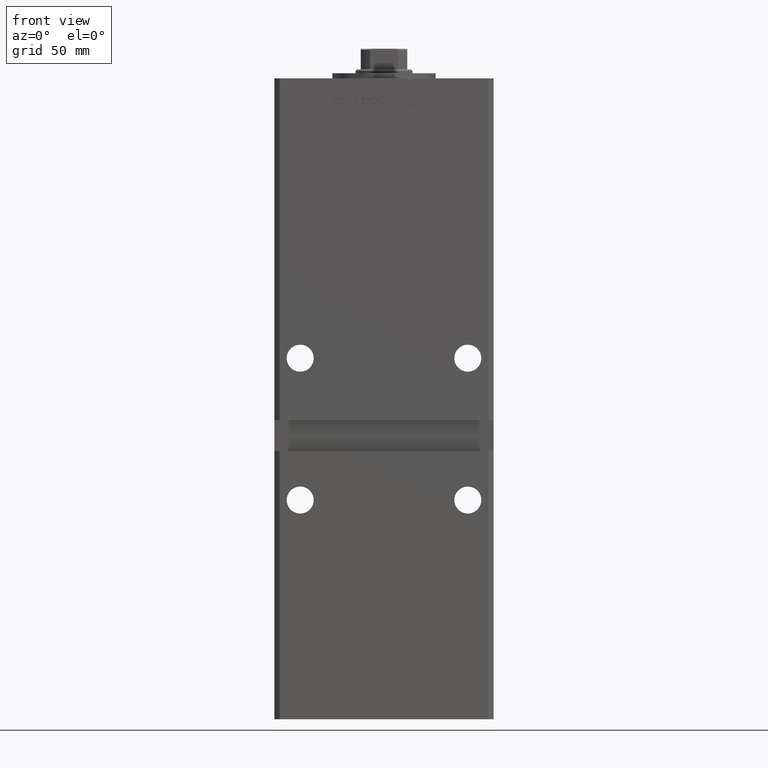
[diagram: clean part render]
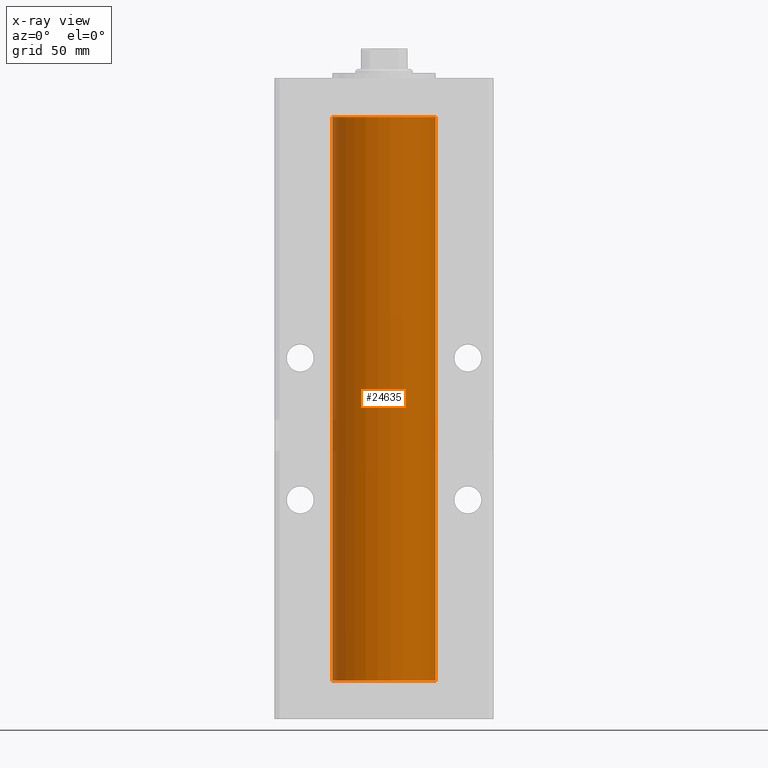
[diagram: x-ray — body ghosted, one internal face saturated and labeled with its STEP entity id]
A machine part, front view, then the same camera in x-ray: the body is ghosted and one INTERNAL B-rep face — a face not visible from any outside direction — is saturated and labeled: STEP entity #24635.
In plain terms, the highlighted cylindrical surface (partial cylindrical patch) has radius 20 mm, axis along (-0, -0, -1).
Its self-contained STEP definition (entity closure, byte-faithful):
#1312 = LINE ( 'NONE', #38566, #27430 ) ;
#1522 = DIRECTION ( 'NONE',  ( -0.000000000000000000, -0.000000000000000000, -1.000000000000000000 ) ) ;
#1948 = DIRECTION ( 'NONE',  ( 1.000000000000000000, 0.000000000000000000, 0.000000000000000000 ) ) ;
#3666 = CARTESIAN_POINT ( 'NONE',  ( 20.00000000000000000, 2.449293598294706513E-15, 0.000000000000000000 ) ) ;
#6027 = EDGE_CURVE ( 'NONE', #42696, #27926, #31945, .T. ) ;
#6831 = EDGE_CURVE ( 'NONE', #31712, #42696, #49836, .T. ) ;
#10401 = CARTESIAN_POINT ( 'NONE',  ( -20.00000000000000000, 0.000000000000000000, 218.5000000000000000 ) ) ;
#10647 = CARTESIAN_POINT ( 'NONE',  ( 20.00000000000000000, 2.449293598294706513E-15, 218.5000000000000000 ) ) ;
#17410 = DIRECTION ( 'NONE',  ( 1.000000000000000000, 0.000000000000000000, 0.000000000000000000 ) ) ;
#17875 = VECTOR ( 'NONE', #27891, 1000.000000000000000 ) ;
#17951 = DIRECTION ( 'NONE',  ( -1.000000000000000000, 0.000000000000000000, 0.000000000000000000 ) ) ;
#18984 = CIRCLE ( 'NONE', #45690, 20.00000000000000000 ) ;
#20588 = CARTESIAN_POINT ( 'NONE',  ( 20.00000000000000000, 2.449293598294706513E-15, 218.5000000000000000 ) ) ;
#21084 = CARTESIAN_POINT ( 'NONE',  ( -20.00000000000000000, 0.000000000000000000, 0.000000000000000000 ) ) ;
#22242 = AXIS2_PLACEMENT_3D ( 'NONE', #22443, #38931, #1948 ) ;
#22443 = CARTESIAN_POINT ( 'NONE',  ( 0.000000000000000000, 0.000000000000000000, 218.5000000000000000 ) ) ;
#24635 = ADVANCED_FACE ( 'NONE', ( #30917 ), #34449, .F. ) ;
#27430 = VECTOR ( 'NONE', #33988, 1000.000000000000000 ) ;
#27891 = DIRECTION ( 'NONE',  ( -0.000000000000000000, -0.000000000000000000, -1.000000000000000000 ) ) ;
#27926 = VERTEX_POINT ( 'NONE', #3666 ) ;
#29141 = ORIENTED_EDGE ( 'NONE', *, *, #39282, .F. ) ;
#30107 = DIRECTION ( 'NONE',  ( -0.000000000000000000, 0.000000000000000000, 1.000000000000000000 ) ) ;
#30606 = AXIS2_PLACEMENT_3D ( 'NONE', #38509, #1522, #17951 ) ;
#30917 = FACE_OUTER_BOUND ( 'NONE', #40198, .T. ) ;
#31712 = VERTEX_POINT ( 'NONE', #10401 ) ;
#31945 = LINE ( 'NONE', #20588, #17875 ) ;
#33386 = CARTESIAN_POINT ( 'NONE',  ( 0.000000000000000000, 0.000000000000000000, 0.000000000000000000 ) ) ;
#33988 = DIRECTION ( 'NONE',  ( -0.000000000000000000, -0.000000000000000000, -1.000000000000000000 ) ) ;
#34449 = CYLINDRICAL_SURFACE ( 'NONE', #30606, 20.00000000000000000 ) ;
#34869 = ORIENTED_EDGE ( 'NONE', *, *, #41640, .F. ) ;
#38509 = CARTESIAN_POINT ( 'NONE',  ( 0.000000000000000000, 0.000000000000000000, 218.5000000000000000 ) ) ;
#38566 = CARTESIAN_POINT ( 'NONE',  ( -20.00000000000000000, 0.000000000000000000, 218.5000000000000000 ) ) ;
#38931 = DIRECTION ( 'NONE',  ( -0.000000000000000000, 0.000000000000000000, 1.000000000000000000 ) ) ;
#39282 = EDGE_CURVE ( 'NONE', #31712, #43324, #1312, .T. ) ;
#40198 = EDGE_LOOP ( 'NONE', ( #40985, #48629, #34869, #29141 ) ) ;
#40985 = ORIENTED_EDGE ( 'NONE', *, *, #6831, .T. ) ;
#41640 = EDGE_CURVE ( 'NONE', #43324, #27926, #18984, .T. ) ;
#42696 = VERTEX_POINT ( 'NONE', #10647 ) ;
#43324 = VERTEX_POINT ( 'NONE', #21084 ) ;
#45690 = AXIS2_PLACEMENT_3D ( 'NONE', #33386, #30107, #17410 ) ;
#48629 = ORIENTED_EDGE ( 'NONE', *, *, #6027, .T. ) ;
#49836 = CIRCLE ( 'NONE', #22242, 20.00000000000000000 ) ;